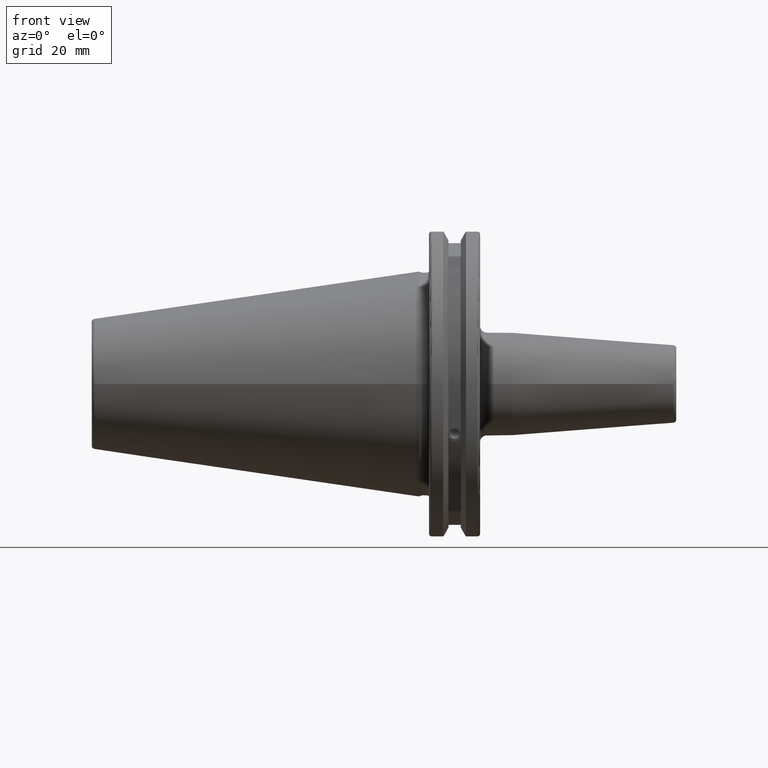
[diagram: clean part render]
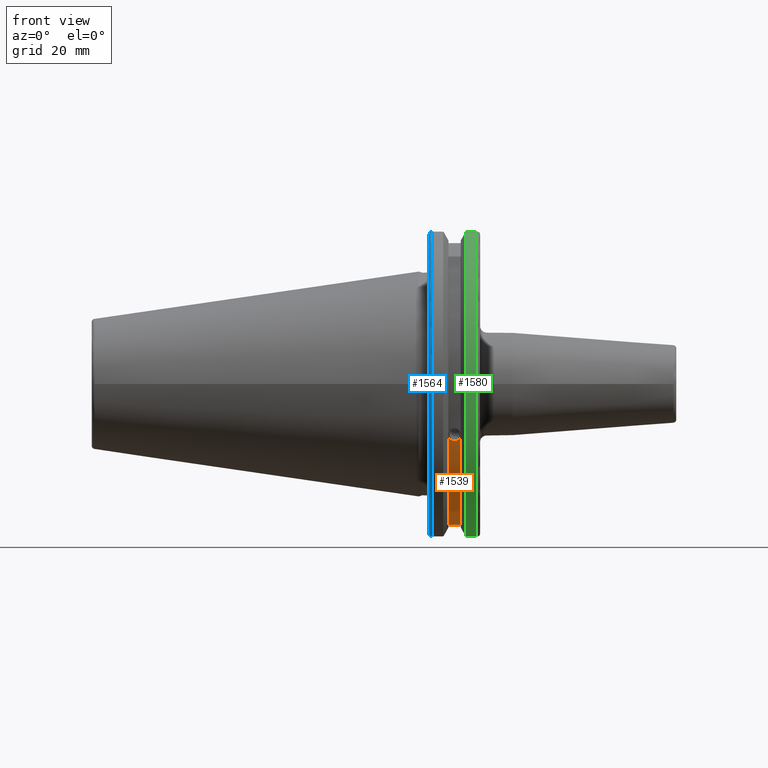
[diagram: same view with three faces highlighted in distinct colors, each labeled with its STEP entity id]
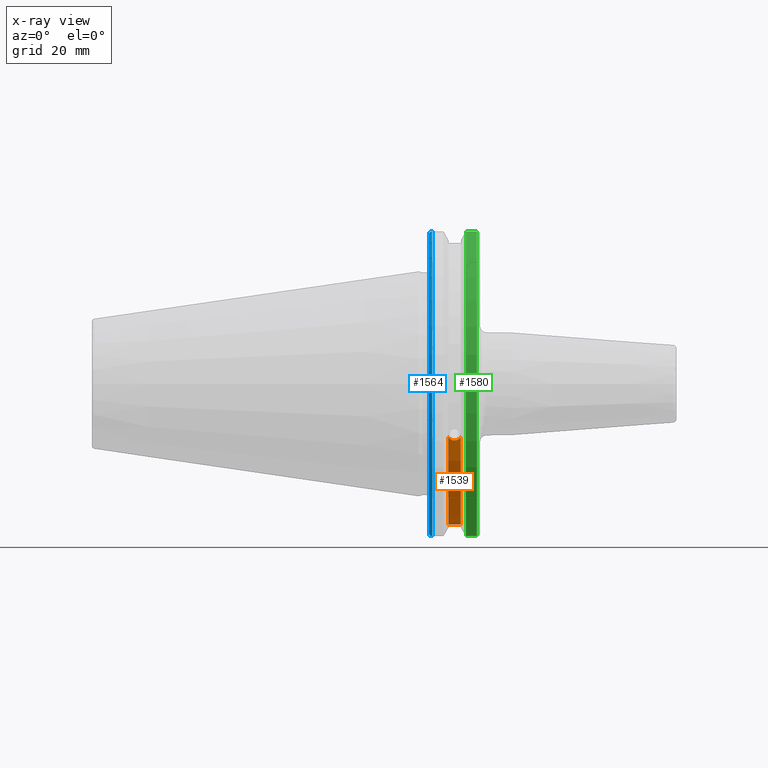
[diagram: x-ray of the same camera — body ghosted, the three highlighted faces saturated]
A machine part, front view with three faces highlighted in distinct colors.
The next image is the same camera in x-ray (body ghosted, the three faces saturated) — at least one of them is partly hidden behind the body in this view.
Their STEP definitions:

[orange] entity #1539 — the highlighted cylindrical surface (partial cylindrical patch) has radius 45.6435 mm, axis along (1, 0, 0).
#44=B_SPLINE_CURVE_WITH_KNOTS('',3,(#2594,#2595,#2596,#2597,#2598,#2599,
#2600,#2601,#2602,#2603,#2604,#2605,#2606,#2607,#2608),.UNSPECIFIED.,.F.,
 .F.,(4,2,2,3,2,2,4),(-0.231381164054419,-0.158232381135623,-0.0791161905678117,
0.,0.0791161905678116,0.158232381135623,0.231381164054566),
 .UNSPECIFIED.);
#180=FACE_OUTER_BOUND('',#280,.T.);
#280=EDGE_LOOP('',(#1159,#1160,#1161,#1162));
#387=CIRCLE('',#1690,45.6435);
#388=CIRCLE('',#1692,45.6435);
#462=LINE('',#2665,#556);
#556=VECTOR('',#1968,10.);
#676=VERTEX_POINT('',#2591);
#677=VERTEX_POINT('',#2593);
#690=VERTEX_POINT('',#2659);
#691=VERTEX_POINT('',#2663);
#849=EDGE_CURVE('',#677,#676,#44,.T.);
#866=EDGE_CURVE('',#677,#690,#387,.T.);
#868=EDGE_CURVE('',#676,#691,#388,.T.);
#869=EDGE_CURVE('',#691,#690,#462,.T.);
#1159=ORIENTED_EDGE('',*,*,#849,.T.);
#1160=ORIENTED_EDGE('',*,*,#868,.T.);
#1161=ORIENTED_EDGE('',*,*,#869,.T.);
#1162=ORIENTED_EDGE('',*,*,#866,.F.);
#1494=CYLINDRICAL_SURFACE('',#1691,45.6435);
#1539=ADVANCED_FACE('',(#180),#1494,.T.);
#1690=AXIS2_PLACEMENT_3D('',#2660,#1961,#1962);
#1691=AXIS2_PLACEMENT_3D('',#2662,#1964,#1965);
#1692=AXIS2_PLACEMENT_3D('',#2664,#1966,#1967);
#1961=DIRECTION('center_axis',(1.,0.,0.));
#1962=DIRECTION('ref_axis',(0.,0.,-1.));
#1964=DIRECTION('center_axis',(1.,0.,0.));
#1965=DIRECTION('ref_axis',(0.,1.,0.));
#1966=DIRECTION('center_axis',(1.,0.,0.));
#1967=DIRECTION('ref_axis',(0.,0.,-1.));
#1968=DIRECTION('',(1.,0.,0.));
#2591=CARTESIAN_POINT('',(9.2191,-42.5884454651059,-16.4180816515115));
#2593=CARTESIAN_POINT('',(13.0491,-42.5884454651059,-16.4180816515115));
#2594=CARTESIAN_POINT('Ctrl Pts',(13.0491,-42.5884454651059,-16.4180816515115));
#2595=CARTESIAN_POINT('Ctrl Pts',(12.9428782240206,-42.5035323832641,-16.6383458840848));
#2596=CARTESIAN_POINT('Ctrl Pts',(12.791391924423,-42.4245077186417,-16.8380515255915));
#2597=CARTESIAN_POINT('Ctrl Pts',(12.4325949659982,-42.2908173017388,-17.1712159412199));
#2598=CARTESIAN_POINT('Ctrl Pts',(12.1964796719457,-42.2294695309474,-17.3208689126276));
#2599=CARTESIAN_POINT('Ctrl Pts',(11.6790940832128,-42.1475978938586,-17.5191491957165));
#2600=CARTESIAN_POINT('Ctrl Pts',(11.397820635226,-42.1271980081205,-17.5678194501937));
#2601=CARTESIAN_POINT('Ctrl Pts',(11.1341,-42.1271980081205,-17.5678194501937));
#2602=CARTESIAN_POINT('Ctrl Pts',(10.870379364774,-42.1271980081205,-17.5678194501937));
#2603=CARTESIAN_POINT('Ctrl Pts',(10.5891059167872,-42.1475978938586,-17.5191491957165));
#2604=CARTESIAN_POINT('Ctrl Pts',(10.0717203280543,-42.2294695309474,-17.3208689126276));
#2605=CARTESIAN_POINT('Ctrl Pts',(9.83560503400179,-42.2908173017388,-17.1712159412199));
#2606=CARTESIAN_POINT('Ctrl Pts',(9.47680807557665,-42.4245077186418,-16.8380515255912));
#2607=CARTESIAN_POINT('Ctrl Pts',(9.32532177598175,-42.5035323832622,-16.6383458840897));
#2608=CARTESIAN_POINT('Ctrl Pts',(9.21909999999999,-42.5884454651059,-16.4180816515115));
#2659=CARTESIAN_POINT('',(13.0491,-12.95,-43.7678716897452));
#2660=CARTESIAN_POINT('Origin',(13.0491,0.,0.));
#2662=CARTESIAN_POINT('Origin',(11.1341,0.,0.));
#2663=CARTESIAN_POINT('',(9.2191,-12.95,-43.7678716897452));
#2664=CARTESIAN_POINT('Origin',(9.2191,0.,0.));
#2665=CARTESIAN_POINT('',(11.1341,-12.95,-43.7678716897452));

[blue] entity #1564 — the highlighted toroidal blend (fillet) surface has major radius 48.2125 mm and minor (blend) radius 1 mm.
#64=B_SPLINE_CURVE_WITH_KNOTS('',3,(#3032,#3033,#3034,#3035,#3036,#3037),
 .UNSPECIFIED.,.F.,.F.,(4,2,4),(0.0976892167532858,0.112000071948292,0.150881870548587),
 .UNSPECIFIED.);
#65=B_SPLINE_CURVE_WITH_KNOTS('',3,(#3058,#3059,#3060,#3061,#3062,#3063),
 .UNSPECIFIED.,.F.,.F.,(4,2,4),(0.452859340315922,0.491741138916218,0.506051994111223),
 .UNSPECIFIED.);
#66=B_SPLINE_CURVE_WITH_KNOTS('',3,(#3067,#3068,#3069,#3070,#3071,#3072,
#3073,#3074),.UNSPECIFIED.,.F.,.F.,(4,2,2,4),(-0.104075769062722,-0.0730268503455485,
-0.034363987365627,0.),.UNSPECIFIED.);
#67=B_SPLINE_CURVE_WITH_KNOTS('',3,(#3077,#3078,#3079,#3080,#3081,#3082,
#3083,#3084),.UNSPECIFIED.,.F.,.F.,(4,2,2,4),(0.,0.0343639873656262,0.073026850345548,
0.104075769062723),.UNSPECIFIED.);
#110=TOROIDAL_SURFACE('',#1741,48.2125,1.);
#205=FACE_OUTER_BOUND('',#312,.T.);
#312=EDGE_LOOP('',(#1315,#1316,#1317,#1318,#1319,#1320));
#407=CIRCLE('',#1729,48.2125);
#412=CIRCLE('',#1742,49.2125);
#727=VERTEX_POINT('',#2912);
#728=VERTEX_POINT('',#2913);
#751=VERTEX_POINT('',#3031);
#757=VERTEX_POINT('',#3056);
#758=VERTEX_POINT('',#3066);
#759=VERTEX_POINT('',#3075);
#918=EDGE_CURVE('',#727,#728,#407,.T.);
#950=EDGE_CURVE('',#751,#727,#64,.T.);
#960=EDGE_CURVE('',#728,#757,#65,.T.);
#962=EDGE_CURVE('',#757,#758,#66,.T.);
#963=EDGE_CURVE('',#758,#759,#412,.T.);
#964=EDGE_CURVE('',#759,#751,#67,.T.);
#1315=ORIENTED_EDGE('',*,*,#962,.T.);
#1316=ORIENTED_EDGE('',*,*,#963,.T.);
#1317=ORIENTED_EDGE('',*,*,#964,.T.);
#1318=ORIENTED_EDGE('',*,*,#950,.T.);
#1319=ORIENTED_EDGE('',*,*,#918,.T.);
#1320=ORIENTED_EDGE('',*,*,#960,.T.);
#1564=ADVANCED_FACE('',(#205),#110,.T.);
#1729=AXIS2_PLACEMENT_3D('',#2914,#2057,#2058);
#1741=AXIS2_PLACEMENT_3D('',#3065,#2105,#2106);
#1742=AXIS2_PLACEMENT_3D('',#3076,#2107,#2108);
#2057=DIRECTION('center_axis',(1.,0.,0.));
#2058=DIRECTION('ref_axis',(0.,-1.,1.60812264967664E-16));
#2105=DIRECTION('center_axis',(1.,0.,0.));
#2106=DIRECTION('ref_axis',(0.,0.,-1.));
#2107=DIRECTION('center_axis',(-1.,0.,0.));
#2108=DIRECTION('ref_axis',(0.,-1.,1.60812264967664E-16));
#2912=CARTESIAN_POINT('',(3.175,-12.95,46.4407434937254));
#2913=CARTESIAN_POINT('',(3.175,-12.95,-46.4407434937254));
#2914=CARTESIAN_POINT('Origin',(3.175,0.,0.));
#3031=CARTESIAN_POINT('',(3.31949794294344,-12.95,46.9780755322918));
#3032=CARTESIAN_POINT('Ctrl Pts',(3.31949794294344,-12.95,46.9780755322918));
#3033=CARTESIAN_POINT('Ctrl Pts',(3.29341556483839,-12.95,46.9333752207329));
#3034=CARTESIAN_POINT('Ctrl Pts',(3.27115672912336,-12.95,46.887363294568));
#3035=CARTESIAN_POINT('Ctrl Pts',(3.20453530071253,-12.95,46.7230464903732));
#3036=CARTESIAN_POINT('Ctrl Pts',(3.175,-12.95,46.5703494890597));
#3037=CARTESIAN_POINT('Ctrl Pts',(3.175,-12.95,46.4407434937254));
#3056=CARTESIAN_POINT('',(3.31949794294343,-12.95,-46.9780755322917));
#3058=CARTESIAN_POINT('Ctrl Pts',(3.175,-12.95,-46.4407434937254));
#3059=CARTESIAN_POINT('Ctrl Pts',(3.175,-12.95,-46.5703494890597));
#3060=CARTESIAN_POINT('Ctrl Pts',(3.20453530071253,-12.95,-46.7230464903732));
#3061=CARTESIAN_POINT('Ctrl Pts',(3.27115672912336,-12.95,-46.887363294568));
#3062=CARTESIAN_POINT('Ctrl Pts',(3.29341556483838,-12.95,-46.9333752207329));
#3063=CARTESIAN_POINT('Ctrl Pts',(3.31949794294343,-12.95,-46.9780755322917));
#3065=CARTESIAN_POINT('Origin',(4.175,0.,0.));
#3066=CARTESIAN_POINT('',(4.175,-13.4317035994433,-47.3440544806494));
#3067=CARTESIAN_POINT('Ctrl Pts',(3.31949794294343,-12.95,-46.9780755322917));
#3068=CARTESIAN_POINT('Ctrl Pts',(3.36785032278753,-13.0300321736484,-47.0388807469102));
#3069=CARTESIAN_POINT('Ctrl Pts',(3.43235971798504,-13.1083611826073,-47.0983919657547));
#3070=CARTESIAN_POINT('Ctrl Pts',(3.58507512107923,-13.2478194810696,-47.2043467509586));
#3071=CARTESIAN_POINT('Ctrl Pts',(3.70638116490964,-13.3242014686233,-47.2623787015413));
#3072=CARTESIAN_POINT('Ctrl Pts',(3.92661103245834,-13.4067722493645,-47.3251126473446));
#3073=CARTESIAN_POINT('Ctrl Pts',(4.06045337544791,-13.4317035994434,-47.3440544806494));
#3074=CARTESIAN_POINT('Ctrl Pts',(4.175,-13.4317035994434,-47.3440544806494));
#3075=CARTESIAN_POINT('',(4.175,-13.4317035994433,47.3440544806494));
#3076=CARTESIAN_POINT('Origin',(4.175,0.,0.));
#3077=CARTESIAN_POINT('Ctrl Pts',(4.175,-13.4317035994433,47.3440544806494));
#3078=CARTESIAN_POINT('Ctrl Pts',(4.06045337544791,-13.4317035994433,47.3440544806494));
#3079=CARTESIAN_POINT('Ctrl Pts',(3.92661103245835,-13.4067722493645,47.3251126473446));
#3080=CARTESIAN_POINT('Ctrl Pts',(3.70638116490965,-13.3242014686233,47.2623787015413));
#3081=CARTESIAN_POINT('Ctrl Pts',(3.58507512107923,-13.2478194810695,47.2043467509586));
#3082=CARTESIAN_POINT('Ctrl Pts',(3.43235971798504,-13.1083611826073,47.0983919657547));
#3083=CARTESIAN_POINT('Ctrl Pts',(3.36785032278754,-13.0300321736484,47.0388807469102));
#3084=CARTESIAN_POINT('Ctrl Pts',(3.31949794294344,-12.95,46.9780755322918));

[green] entity #1580 — the highlighted cylindrical surface (partial cylindrical patch) has radius 49.2125 mm, axis along (1, 0, 0).
#221=FACE_OUTER_BOUND('',#329,.T.);
#329=EDGE_LOOP('',(#1391,#1392,#1393,#1394));
#385=CIRCLE('',#1687,49.2125);
#411=CIRCLE('',#1738,49.2125);
#517=LINE('',#3167,#611);
#518=LINE('',#3169,#612);
#611=VECTOR('',#2169,10.);
#612=VECTOR('',#2172,10.);
#686=VERTEX_POINT('',#2643);
#687=VERTEX_POINT('',#2647);
#749=VERTEX_POINT('',#3010);
#750=VERTEX_POINT('',#3019);
#862=EDGE_CURVE('',#687,#686,#385,.T.);
#947=EDGE_CURVE('',#749,#750,#411,.T.);
#993=EDGE_CURVE('',#750,#686,#517,.T.);
#994=EDGE_CURVE('',#687,#749,#518,.T.);
#1391=ORIENTED_EDGE('',*,*,#947,.F.);
#1392=ORIENTED_EDGE('',*,*,#994,.F.);
#1393=ORIENTED_EDGE('',*,*,#862,.T.);
#1394=ORIENTED_EDGE('',*,*,#993,.F.);
#1504=CYLINDRICAL_SURFACE('',#1766,49.2125);
#1580=ADVANCED_FACE('',(#221),#1504,.T.);
#1687=AXIS2_PLACEMENT_3D('',#2648,#1955,#1956);
#1738=AXIS2_PLACEMENT_3D('',#3020,#2090,#2091);
#1766=AXIS2_PLACEMENT_3D('',#3168,#2170,#2171);
#1955=DIRECTION('center_axis',(1.,0.,0.));
#1956=DIRECTION('ref_axis',(0.,0.,-1.));
#2090=DIRECTION('center_axis',(1.,0.,0.));
#2091=DIRECTION('ref_axis',(0.,-1.,1.60812264967664E-16));
#2169=DIRECTION('',(-1.,0.,0.));
#2170=DIRECTION('center_axis',(1.,0.,0.));
#2171=DIRECTION('ref_axis',(0.,-1.,1.22464679914735E-16));
#2172=DIRECTION('',(1.,0.,0.));
#2643=CARTESIAN_POINT('',(14.6602090340487,-13.4317035994433,-47.3440544806494));
#2647=CARTESIAN_POINT('',(14.6602090340487,-13.4317035994433,47.3440544806494));
#2648=CARTESIAN_POINT('Origin',(14.6602090340487,0.,0.));
#3010=CARTESIAN_POINT('',(18.05,-13.4317035994433,47.3440544806494));
#3019=CARTESIAN_POINT('',(18.05,-13.4317035994433,-47.3440544806494));
#3020=CARTESIAN_POINT('Origin',(18.05,0.,0.));
#3167=CARTESIAN_POINT('',(16.8551045170244,-13.4317035994433,-47.3440544806494));
#3168=CARTESIAN_POINT('Origin',(16.8551045170244,0.,0.));
#3169=CARTESIAN_POINT('',(16.8551045170244,-13.4317035994433,47.3440544806494));